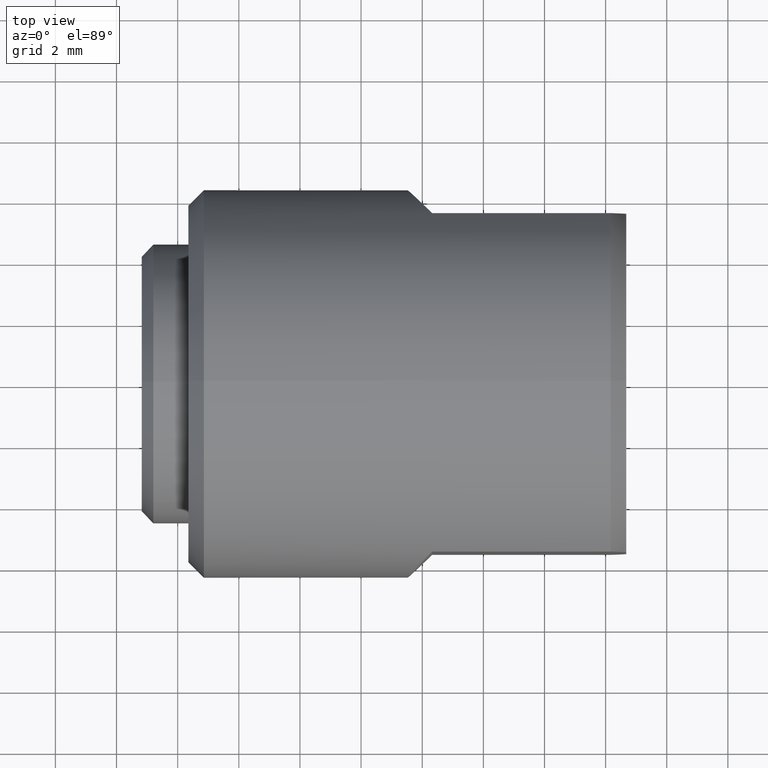
[diagram: clean part render]
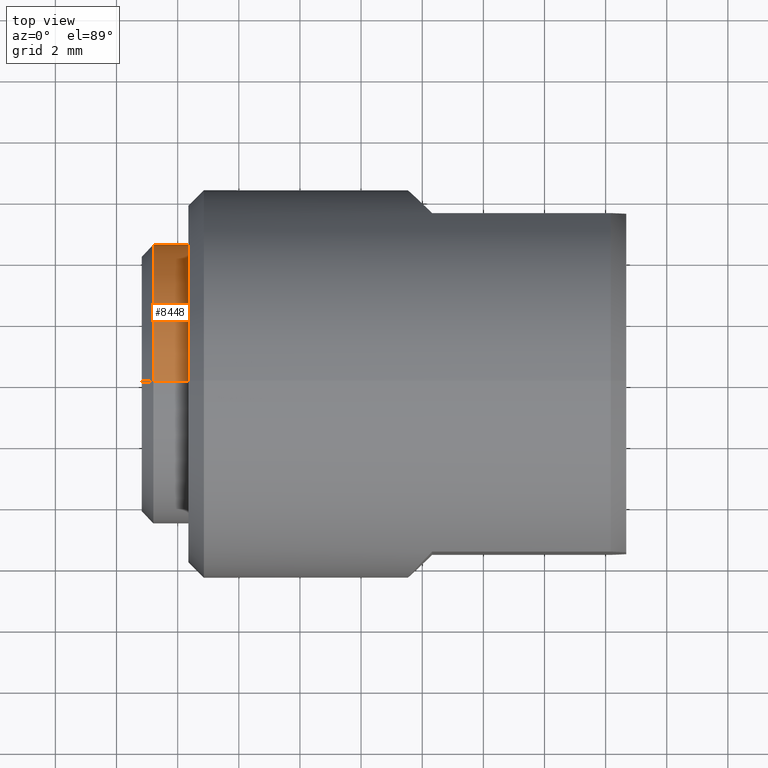
[diagram: same view with one face highlighted and labeled with its STEP entity id]
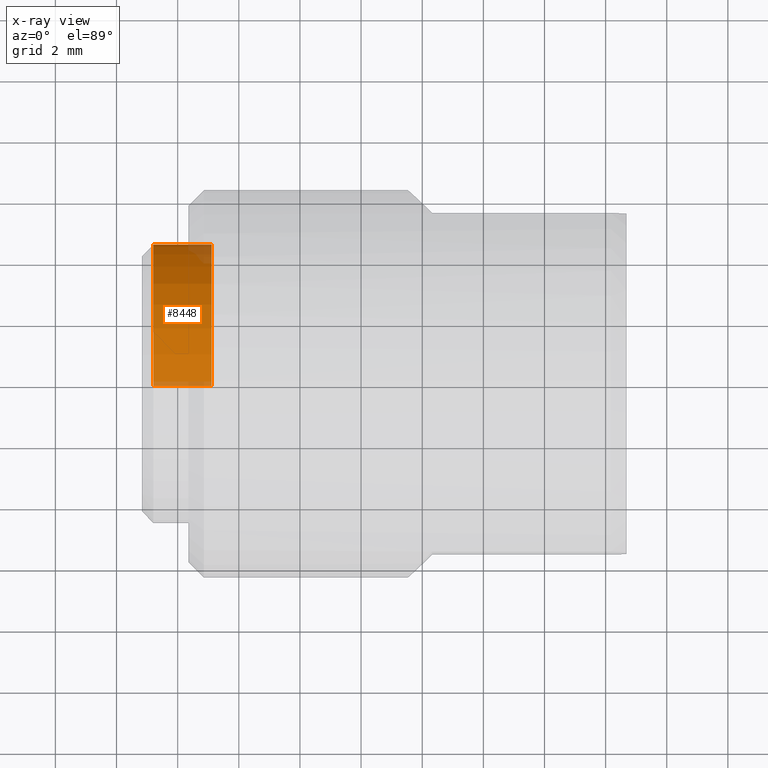
[diagram: x-ray of the same camera — body ghosted, the highlighted face saturated]
A machine part, top view. The second image highlights one B-rep face of the part: STEP entity #8448.
The next image is the same camera in x-ray: the body ghosted, the highlighted face saturated — about 7% of this face is hidden behind the body in this view.
In plain terms, the highlighted cylindrical surface (partial cylindrical patch) has radius 4.5593 mm, axis along (-1, -0, -0).
Its self-contained STEP definition (entity closure, byte-faithful):
#286 = CARTESIAN_POINT ( 'NONE',  ( -0.03499999999999998251, 0.0000000000000000000, 0.1795000000000000207 ) ) ;
#679 = LINE ( 'NONE', #2504, #8124 ) ;
#990 = CIRCLE ( 'NONE', #2792, 0.1795000000000000207 ) ;
#1058 = CYLINDRICAL_SURFACE ( 'NONE', #9402, 0.1795000000000000207 ) ;
#1476 = ORIENTED_EDGE ( 'NONE', *, *, #1769, .T. ) ;
#1769 = EDGE_CURVE ( 'NONE', #9314, #5985, #679, .T. ) ;
#2139 = CARTESIAN_POINT ( 'NONE',  ( -0.03499999999999998251, 2.198241004469499378E-17, -0.1795000000000000207 ) ) ;
#2504 = CARTESIAN_POINT ( 'NONE',  ( 0.0000000000000000000, 2.198241004469499378E-17, -0.1795000000000000207 ) ) ;
#2792 = AXIS2_PLACEMENT_3D ( 'NONE', #9506, #10447, #4462 ) ;
#3115 = ORIENTED_EDGE ( 'NONE', *, *, #9008, .T. ) ;
#4462 = DIRECTION ( 'NONE',  ( 0.0000000000000000000, 0.0000000000000000000, 1.000000000000000000 ) ) ;
#4576 = EDGE_LOOP ( 'NONE', ( #3115, #1476, #9414, #10850 ) ) ;
#4678 = CARTESIAN_POINT ( 'NONE',  ( -0.1100000000000000006, 2.198241004469499378E-17, -0.1795000000000000207 ) ) ;
#5985 = VERTEX_POINT ( 'NONE', #4678 ) ;
#6296 = DIRECTION ( 'NONE',  ( -1.000000000000000000, -0.0000000000000000000, -0.0000000000000000000 ) ) ;
#7350 = CARTESIAN_POINT ( 'NONE',  ( 0.0000000000000000000, 0.0000000000000000000, 0.1795000000000000207 ) ) ;
#7644 = FACE_OUTER_BOUND ( 'NONE', #4576, .T. ) ;
#8124 = VECTOR ( 'NONE', #12112, 39.37007874015748143 ) ;
#8202 = AXIS2_PLACEMENT_3D ( 'NONE', #9311, #6296, #10254 ) ;
#8448 = ADVANCED_FACE ( 'NONE', ( #7644 ), #1058, .T. ) ;
#8493 = DIRECTION ( 'NONE',  ( -1.000000000000000000, -0.0000000000000000000, -0.0000000000000000000 ) ) ;
#8783 = DIRECTION ( 'NONE',  ( 0.0000000000000000000, 0.0000000000000000000, 1.000000000000000000 ) ) ;
#8924 = EDGE_CURVE ( 'NONE', #12173, #11751, #11134, .T. ) ;
#9008 = EDGE_CURVE ( 'NONE', #12173, #9314, #990, .T. ) ;
#9194 = VECTOR ( 'NONE', #8493, 39.37007874015748143 ) ;
#9311 = CARTESIAN_POINT ( 'NONE',  ( -0.1100000000000000006, 0.0000000000000000000, 0.0000000000000000000 ) ) ;
#9314 = VERTEX_POINT ( 'NONE', #2139 ) ;
#9402 = AXIS2_PLACEMENT_3D ( 'NONE', #11735, #11491, #8783 ) ;
#9414 = ORIENTED_EDGE ( 'NONE', *, *, #10989, .F. ) ;
#9506 = CARTESIAN_POINT ( 'NONE',  ( -0.03499999999999998251, 0.0000000000000000000, 0.0000000000000000000 ) ) ;
#10254 = DIRECTION ( 'NONE',  ( 0.0000000000000000000, 0.0000000000000000000, 1.000000000000000000 ) ) ;
#10447 = DIRECTION ( 'NONE',  ( -1.000000000000000000, -0.0000000000000000000, -0.0000000000000000000 ) ) ;
#10850 = ORIENTED_EDGE ( 'NONE', *, *, #8924, .F. ) ;
#10989 = EDGE_CURVE ( 'NONE', #11751, #5985, #11229, .T. ) ;
#11134 = LINE ( 'NONE', #7350, #9194 ) ;
#11146 = CARTESIAN_POINT ( 'NONE',  ( -0.1100000000000000006, 0.0000000000000000000, 0.1795000000000000207 ) ) ;
#11229 = CIRCLE ( 'NONE', #8202, 0.1795000000000000207 ) ;
#11491 = DIRECTION ( 'NONE',  ( -1.000000000000000000, -0.0000000000000000000, -0.0000000000000000000 ) ) ;
#11735 = CARTESIAN_POINT ( 'NONE',  ( 0.0000000000000000000, 0.0000000000000000000, 0.0000000000000000000 ) ) ;
#11751 = VERTEX_POINT ( 'NONE', #11146 ) ;
#12112 = DIRECTION ( 'NONE',  ( -1.000000000000000000, -0.0000000000000000000, -0.0000000000000000000 ) ) ;
#12173 = VERTEX_POINT ( 'NONE', #286 ) ;